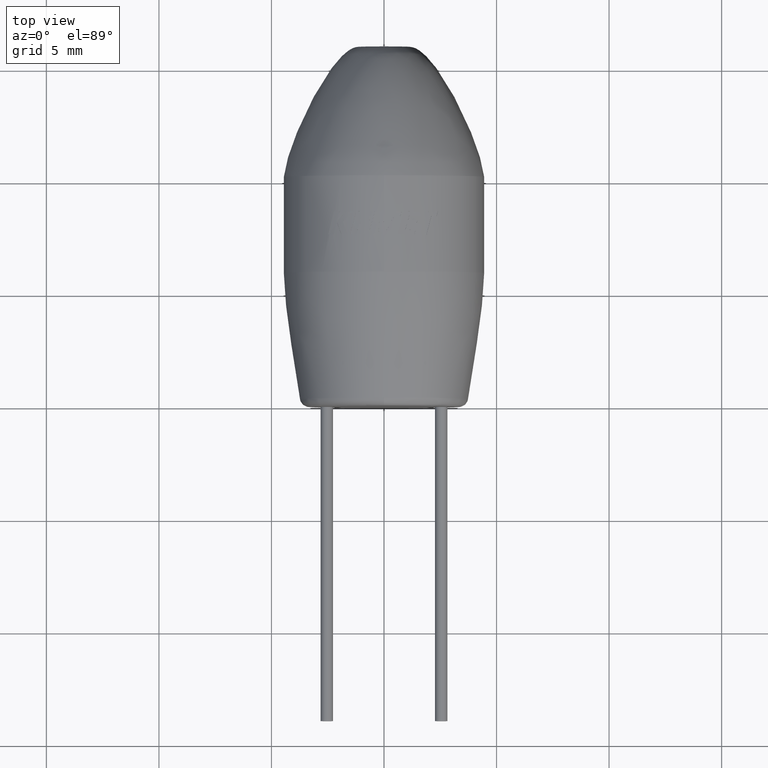
[diagram: clean part render]
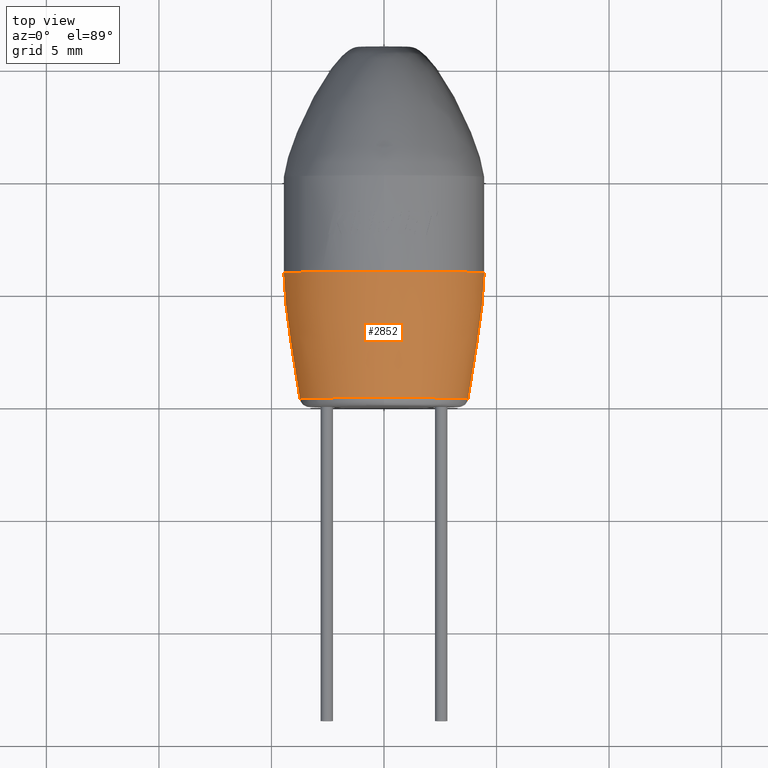
[diagram: same view with one face highlighted and labeled with its STEP entity id]
A machine part, top view. The second image highlights one B-rep face of the part: STEP entity #2852.
In plain terms, the highlighted face is a freeform B-spline surface patch.
Its self-contained STEP definition (entity closure, byte-faithful):
#12 = CARTESIAN_POINT ( 'NONE',  ( 3.731606038113031200, 0.3520181413225391100, 0.0000000000000000000 ) ) ;
#68 = CARTESIAN_POINT ( 'NONE',  ( 3.731606038113031200, 0.3520181413225391100, 0.0000000000000000000 ) ) ;
#107 = VERTEX_POINT ( 'NONE', #1076 ) ;
#159 = ORIENTED_EDGE ( 'NONE', *, *, #1119, .T. ) ;
#170 = VERTEX_POINT ( 'NONE', #2787 ) ;
#249 = AXIS2_PLACEMENT_3D ( 'NONE', #3306, #1862, #670 ) ;
#321 = B_SPLINE_CURVE_WITH_KNOTS ( 'NONE', 3,
 ( #3475, #581, #1990, #12 ),
 .UNSPECIFIED., .F., .F.,
 ( 4, 4 ),
 ( 0.0000000000000000000, 0.9061614168338424400 ),
 .UNSPECIFIED. ) ;
#325 = CARTESIAN_POINT ( 'NONE',  ( 0.0000000000000000000, 5.948800000000001200, 0.0000000000000000000 ) ) ;
#421 = CARTESIAN_POINT ( 'NONE',  ( -3.731606038113029800, 0.3520181413225391100, 7.463212076226061400 ) ) ;
#434 = CARTESIAN_POINT ( 'NONE',  ( -4.387620518288237300, 3.762619615715530900, 8.775241036576474600 ) ) ;
#477 = AXIS2_PLACEMENT_3D ( 'NONE', #1380, #1932, #3665 ) ;
#581 = CARTESIAN_POINT ( 'NONE',  ( 4.387620518288238200, 3.762619615715530500, 0.0000000000000000000 ) ) ;
#610 = DIRECTION ( 'NONE',  ( 0.0000000000000000000, 0.0000000000000000000, -1.000000000000000000 ) ) ;
#645 = ORIENTED_EDGE ( 'NONE', *, *, #3693, .T. ) ;
#670 = DIRECTION ( 'NONE',  ( 0.0000000000000000000, 0.0000000000000000000, -1.000000000000000000 ) ) ;
#681 = FACE_OUTER_BOUND ( 'NONE', #3092, .T. ) ;
#825 = CARTESIAN_POINT ( 'NONE',  ( -4.450000000000000200, 5.948800000000001200, 5.449678256205721800E-016 ) ) ;
#885 = DIRECTION ( 'NONE',  ( 0.0000000000000000000, 0.0000000000000000000, -1.000000000000000000 ) ) ;
#896 = VERTEX_POINT ( 'NONE', #2686 ) ;
#1076 = CARTESIAN_POINT ( 'NONE',  ( 3.731606038113031200, 0.3520181413225391100, 0.0000000000000000000 ) ) ;
#1119 = EDGE_CURVE ( 'NONE', #1477, #170, #1874, .T. ) ;
#1160 = CARTESIAN_POINT ( 'NONE',  ( 0.0000000000000000000, 5.948800000000001200, 0.0000000000000000000 ) ) ;
#1215 = EDGE_CURVE ( 'NONE', #896, #107, #321, .T. ) ;
#1286 = VERTEX_POINT ( 'NONE', #2048 ) ;
#1325 = CARTESIAN_POINT ( 'NONE',  ( -3.868251410342837400, 1.586056352738458800, 7.736502820685676500 ) ) ;
#1380 = CARTESIAN_POINT ( 'NONE',  ( 0.0000000000000000000, 0.3520181413225391100, 0.0000000000000000000 ) ) ;
#1475 = CIRCLE ( 'NONE', #3649, 4.450000000000000200 ) ;
#1477 = VERTEX_POINT ( 'NONE', #1904 ) ;
#1528 = CARTESIAN_POINT ( 'NONE',  ( -4.387620518288238200, 3.762619615715530500, 5.373285423594941700E-016 ) ) ;
#1620 = CARTESIAN_POINT ( 'NONE',  ( -4.449999999999999300, 5.948800000000002100, 8.899999999999998600 ) ) ;
#1651 = CARTESIAN_POINT ( 'NONE',  ( -3.868251410342838300, 1.586056352738458800, 4.737241707973592800E-016 ) ) ;
#1701 = AXIS2_PLACEMENT_3D ( 'NONE', #1160, #3172, #610 ) ;
#1828 = ORIENTED_EDGE ( 'NONE', *, *, #3283, .T. ) ;
#1862 = DIRECTION ( 'NONE',  ( 0.0000000000000000000, 1.000000000000000000, 0.0000000000000000000 ) ) ;
#1874 = CIRCLE ( 'NONE', #477, 3.731606038113031200 ) ;
#1904 = CARTESIAN_POINT ( 'NONE',  ( -3.731606038113031200, 0.3520181413225391100, 5.009788823229889900E-016 ) ) ;
#1932 = DIRECTION ( 'NONE',  ( 0.0000000000000000000, 1.000000000000000000, 0.0000000000000000000 ) ) ;
#1936 = CARTESIAN_POINT ( 'NONE',  ( -3.731606038113031200, 0.3520181413225391100, 5.009788823229889900E-016 ) ) ;
#1952 = ORIENTED_EDGE ( 'NONE', *, *, #2933, .T. ) ;
#1990 = CARTESIAN_POINT ( 'NONE',  ( 3.868251410342838300, 1.586056352738458800, 0.0000000000000000000 ) ) ;
#1996 = CARTESIAN_POINT ( 'NONE',  ( 4.450000000000000200, 5.948800000000001200, 0.0000000000000000000 ) ) ;
#1999 = CARTESIAN_POINT ( 'NONE',  ( 4.449999999999999300, 5.948800000000002100, 8.899999999999998600 ) ) ;
#2048 = CARTESIAN_POINT ( 'NONE',  ( 5.449678256205721800E-016, 5.948800000000001200, 4.450000000000000200 ) ) ;
#2053 = ORIENTED_EDGE ( 'NONE', *, *, #1215, .F. ) ;
#2130 = CARTESIAN_POINT ( 'NONE',  ( 3.868251410342838300, 1.586056352738458800, 0.0000000000000000000 ) ) ;
#2149 = CIRCLE ( 'NONE', #1701, 4.450000000000000200 ) ;
#2174 = VERTEX_POINT ( 'NONE', #2459 ) ;
#2215 = CARTESIAN_POINT ( 'NONE',  ( -4.450000000000000200, 5.948800000000001200, 5.449678256205721800E-016 ) ) ;
#2422 = CARTESIAN_POINT ( 'NONE',  ( -3.731606038113031200, 0.3520181413225391100, 4.569899390254060000E-016 ) ) ;
#2459 = CARTESIAN_POINT ( 'NONE',  ( -4.450000000000000200, 5.948800000000001200, 5.449678256205721800E-016 ) ) ;
#2583 = CARTESIAN_POINT ( 'NONE',  ( 3.731606038113031200, 0.3520181413225391100, 7.463212076226059600 ) ) ;
#2591 = DIRECTION ( 'NONE',  ( -0.0000000000000000000, -1.000000000000000000, -0.0000000000000000000 ) ) ;
#2686 = CARTESIAN_POINT ( 'NONE',  ( 4.450000000000000200, 5.948800000000001200, 0.0000000000000000000 ) ) ;
#2782 = EDGE_CURVE ( 'NONE', #1286, #2174, #2149, .T. ) ;
#2787 = CARTESIAN_POINT ( 'NONE',  ( 4.569899390254060000E-016, 0.3520181413225391100, 3.731606038113031200 ) ) ;
#2792 = CARTESIAN_POINT ( 'NONE',  ( -4.387620518288238200, 3.762619615715530500, 5.373285423594941700E-016 ) ) ;
#2852 = ADVANCED_FACE ( 'NONE', ( #681 ), #2984, .F. ) ;
#2933 = EDGE_CURVE ( 'NONE', #170, #107, #3286, .T. ) ;
#2984 =( BOUNDED_SURFACE ( )  B_SPLINE_SURFACE ( 3, 3, ( 
 ( #1996, #1999, #1620, #2215 ),
 ( #3268, #3546, #434, #1528 ),
 ( #2130, #3066, #1325, #3669 ),
 ( #68, #2583, #421, #2422 ) ),
 .UNSPECIFIED., .F., .F., .F. ) 
 B_SPLINE_SURFACE_WITH_KNOTS ( ( 4, 4 ),
 ( 4, 4 ),
 ( 0.0000000000000000000, 0.9061614168338424400 ),
 ( 0.0000000000000000000, 1.000000000000000000 ),
 .UNSPECIFIED. ) 
 GEOMETRIC_REPRESENTATION_ITEM ( )  RATIONAL_B_SPLINE_SURFACE ( (
 ( 1.000000000000000000, 0.3333333333333334300, 0.3333333333333334300, 1.000000000000000000),
 ( 1.000000000000000000, 0.3333333333333334300, 0.3333333333333334300, 1.000000000000000000),
 ( 1.000000000000000000, 0.3333333333333334300, 0.3333333333333334300, 1.000000000000000000),
 ( 1.000000000000000000, 0.3333333333333334300, 0.3333333333333334300, 1.000000000000000000) ) ) 
 REPRESENTATION_ITEM ( '' )  SURFACE ( )  );
#3066 = CARTESIAN_POINT ( 'NONE',  ( 3.868251410342838700, 1.586056352738458800, 7.736502820685674700 ) ) ;
#3092 = EDGE_LOOP ( 'NONE', ( #3616, #1828, #159, #1952, #2053, #645 ) ) ;
#3172 = DIRECTION ( 'NONE',  ( -0.0000000000000000000, -1.000000000000000000, -0.0000000000000000000 ) ) ;
#3268 = CARTESIAN_POINT ( 'NONE',  ( 4.387620518288238200, 3.762619615715530500, 0.0000000000000000000 ) ) ;
#3283 = EDGE_CURVE ( 'NONE', #2174, #1477, #3301, .T. ) ;
#3286 = CIRCLE ( 'NONE', #249, 3.731606038113031200 ) ;
#3301 = B_SPLINE_CURVE_WITH_KNOTS ( 'NONE', 3,
 ( #825, #2792, #1651, #1936 ),
 .UNSPECIFIED., .F., .F.,
 ( 4, 4 ),
 ( 0.0000000000000000000, 0.9061614168338424400 ),
 .UNSPECIFIED. ) ;
#3306 = CARTESIAN_POINT ( 'NONE',  ( 0.0000000000000000000, 0.3520181413225391100, 0.0000000000000000000 ) ) ;
#3475 = CARTESIAN_POINT ( 'NONE',  ( 4.450000000000000200, 5.948800000000001200, 0.0000000000000000000 ) ) ;
#3546 = CARTESIAN_POINT ( 'NONE',  ( 4.387620518288238200, 3.762619615715530900, 8.775241036576474600 ) ) ;
#3616 = ORIENTED_EDGE ( 'NONE', *, *, #2782, .T. ) ;
#3649 = AXIS2_PLACEMENT_3D ( 'NONE', #325, #2591, #885 ) ;
#3665 = DIRECTION ( 'NONE',  ( 0.0000000000000000000, 0.0000000000000000000, -1.000000000000000000 ) ) ;
#3669 = CARTESIAN_POINT ( 'NONE',  ( -3.868251410342838300, 1.586056352738458800, 4.737241707973591800E-016 ) ) ;
#3693 = EDGE_CURVE ( 'NONE', #896, #1286, #1475, .T. ) ;